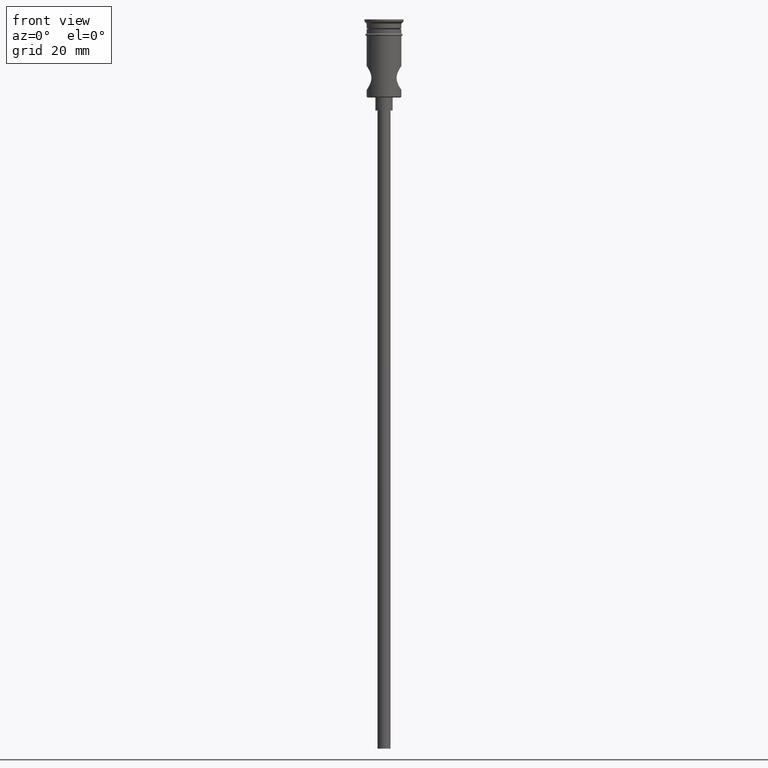
[diagram: clean part render]
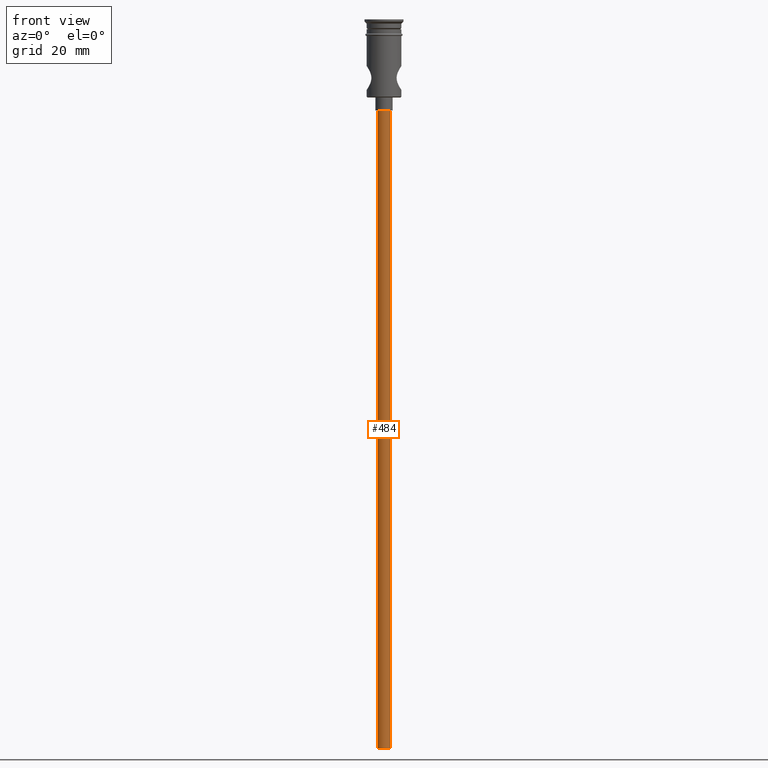
[diagram: same view with one face highlighted and labeled with its STEP entity id]
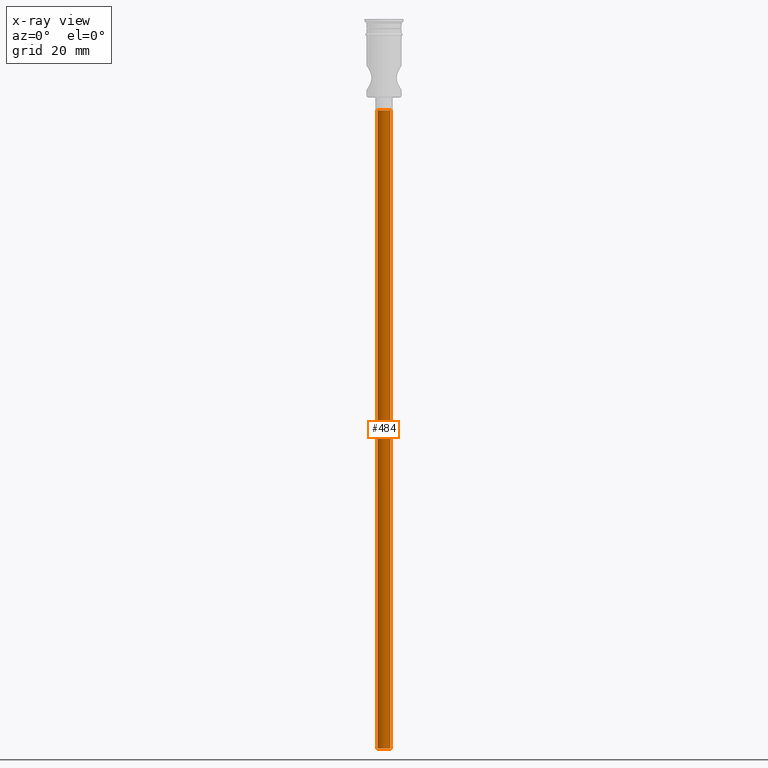
[diagram: x-ray of the same camera — body ghosted, the highlighted face saturated]
A machine part, front view. The second image highlights one B-rep face of the part: STEP entity #484.
The next image is the same camera in x-ray: the body ghosted, the highlighted face saturated — about 0% of this face is hidden behind the body in this view.
In plain terms, the highlighted cylindrical surface (edge-blend (fillet) strip) has radius 1.5 mm, axis along (-0, -0, 1).
Its self-contained STEP definition (entity closure, byte-faithful):
#2 = DIRECTION ( 'NONE',  ( -0.000000000000000000, -0.000000000000000000, 1.000000000000000000 ) ) ;
#14 = CYLINDRICAL_SURFACE ( 'NONE', #393, 1.500000000000000222 ) ;
#43 = DIRECTION ( 'NONE',  ( 0.000000000000000000, 0.000000000000000000, -1.000000000000000000 ) ) ;
#71 = VERTEX_POINT ( 'NONE', #1205 ) ;
#130 = VERTEX_POINT ( 'NONE', #1039 ) ;
#172 = EDGE_CURVE ( 'NONE', #1016, #71, #1229, .T. ) ;
#176 = EDGE_LOOP ( 'NONE', ( #206, #460, #235, #1339 ) ) ;
#184 = EDGE_CURVE ( 'NONE', #130, #417, #312, .T. ) ;
#206 = ORIENTED_EDGE ( 'NONE', *, *, #542, .F. ) ;
#217 = CARTESIAN_POINT ( 'NONE',  ( -1.500000000000000222, 1.836970198721030181E-16, -167.9999999999999716 ) ) ;
#235 = ORIENTED_EDGE ( 'NONE', *, *, #1183, .T. ) ;
#312 = CIRCLE ( 'NONE', #1085, 1.500000000000000222 ) ;
#337 = VECTOR ( 'NONE', #705, 1000.000000000000000 ) ;
#393 = AXIS2_PLACEMENT_3D ( 'NONE', #456, #2, #773 ) ;
#417 = VERTEX_POINT ( 'NONE', #1417 ) ;
#426 = VECTOR ( 'NONE', #1424, 1000.000000000000000 ) ;
#456 = CARTESIAN_POINT ( 'NONE',  ( 0.000000000000000000, 0.000000000000000000, -167.9999999999999716 ) ) ;
#460 = ORIENTED_EDGE ( 'NONE', *, *, #184, .F. ) ;
#483 = DIRECTION ( 'NONE',  ( -1.000000000000000000, 0.000000000000000000, 0.000000000000000000 ) ) ;
#484 = ADVANCED_FACE ( 'NONE', ( #996 ), #14, .T. ) ;
#514 = DIRECTION ( 'NONE',  ( -1.000000000000000000, 0.000000000000000000, 0.000000000000000000 ) ) ;
#542 = EDGE_CURVE ( 'NONE', #417, #71, #1195, .T. ) ;
#592 = CARTESIAN_POINT ( 'NONE',  ( 1.500000000000000222, 0.000000000000000000, -20.99999999999999645 ) ) ;
#620 = DIRECTION ( 'NONE',  ( 0.000000000000000000, 0.000000000000000000, -1.000000000000000000 ) ) ;
#650 = LINE ( 'NONE', #980, #426 ) ;
#705 = DIRECTION ( 'NONE',  ( -0.000000000000000000, -0.000000000000000000, 1.000000000000000000 ) ) ;
#744 = CARTESIAN_POINT ( 'NONE',  ( 0.000000000000000000, 0.000000000000000000, -167.9999999999999716 ) ) ;
#773 = DIRECTION ( 'NONE',  ( 1.000000000000000000, 0.000000000000000000, 0.000000000000000000 ) ) ;
#830 = AXIS2_PLACEMENT_3D ( 'NONE', #1026, #43, #483 ) ;
#980 = CARTESIAN_POINT ( 'NONE',  ( 1.500000000000000222, 0.000000000000000000, -167.9999999999999716 ) ) ;
#996 = FACE_OUTER_BOUND ( 'NONE', #176, .T. ) ;
#1016 = VERTEX_POINT ( 'NONE', #592 ) ;
#1026 = CARTESIAN_POINT ( 'NONE',  ( 0.000000000000000000, 0.000000000000000000, -20.99999999999999645 ) ) ;
#1039 = CARTESIAN_POINT ( 'NONE',  ( 1.500000000000000222, 0.000000000000000000, -167.9999999999999716 ) ) ;
#1085 = AXIS2_PLACEMENT_3D ( 'NONE', #744, #620, #514 ) ;
#1183 = EDGE_CURVE ( 'NONE', #130, #1016, #650, .T. ) ;
#1195 = LINE ( 'NONE', #217, #337 ) ;
#1205 = CARTESIAN_POINT ( 'NONE',  ( -1.500000000000000222, 1.836970198721030181E-16, -20.99999999999999645 ) ) ;
#1229 = CIRCLE ( 'NONE', #830, 1.500000000000000222 ) ;
#1339 = ORIENTED_EDGE ( 'NONE', *, *, #172, .T. ) ;
#1417 = CARTESIAN_POINT ( 'NONE',  ( -1.500000000000000222, 1.836970198721030181E-16, -167.9999999999999716 ) ) ;
#1424 = DIRECTION ( 'NONE',  ( -0.000000000000000000, -0.000000000000000000, 1.000000000000000000 ) ) ;